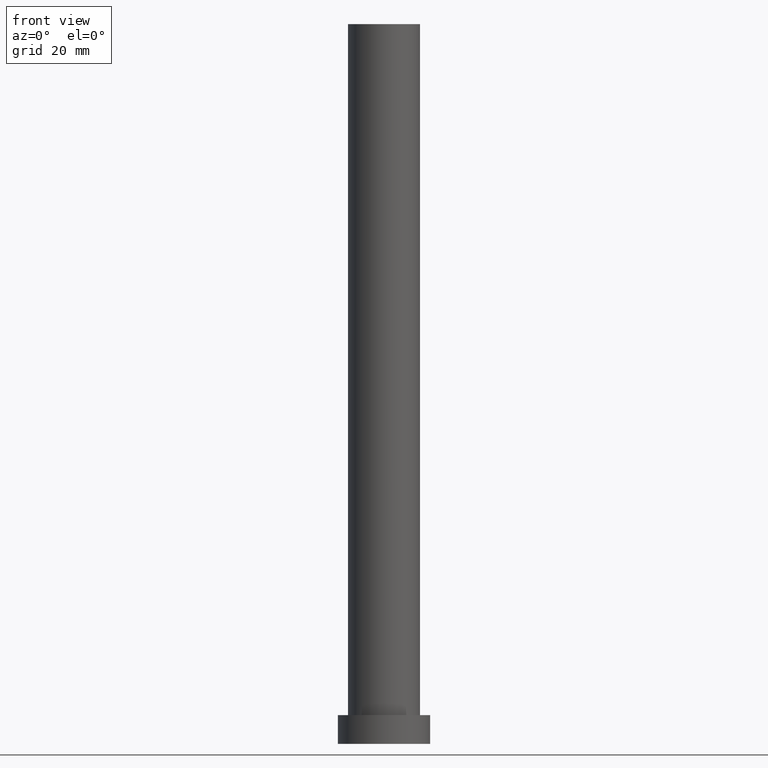
[diagram: clean part render]
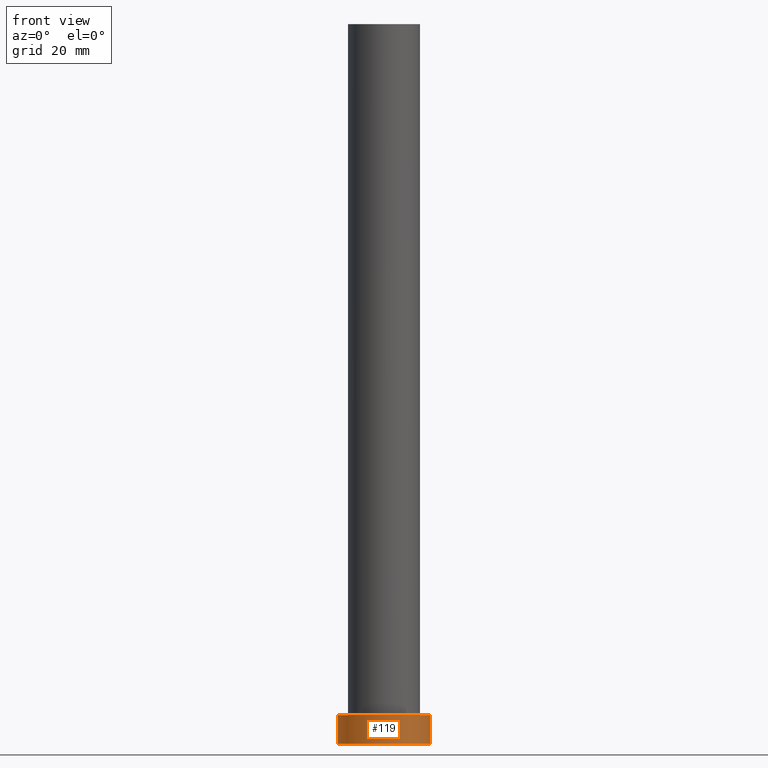
[diagram: same view with one face highlighted and labeled with its STEP entity id]
A machine part, front view. The second image highlights one B-rep face of the part: STEP entity #119.
In plain terms, the highlighted cylindrical surface (partial cylindrical patch) has radius 16 mm, axis along (-0, -0, -1).
Its self-contained STEP definition (entity closure, byte-faithful):
#1 = ORIENTED_EDGE ( 'NONE', *, *, #93, .F. ) ;
#9 = DIRECTION ( 'NONE',  ( 0.000000000000000000, 0.000000000000000000, 1.000000000000000000 ) ) ;
#15 = AXIS2_PLACEMENT_3D ( 'NONE', #49, #123, #56 ) ;
#19 = ORIENTED_EDGE ( 'NONE', *, *, #214, .T. ) ;
#20 = AXIS2_PLACEMENT_3D ( 'NONE', #86, #9, #124 ) ;
#22 = EDGE_LOOP ( 'NONE', ( #1, #80, #177, #19 ) ) ;
#23 = EDGE_CURVE ( 'NONE', #156, #232, #37, .T. ) ;
#28 = DIRECTION ( 'NONE',  ( -1.000000000000000000, 0.000000000000000000, 0.000000000000000000 ) ) ;
#32 = CARTESIAN_POINT ( 'NONE',  ( 16.00000000000000000, 1.959434878635765131E-15, 10.00000000000000000 ) ) ;
#37 = CIRCLE ( 'NONE', #15, 16.00000000000000000 ) ;
#39 = VERTEX_POINT ( 'NONE', #146 ) ;
#43 = VECTOR ( 'NONE', #210, 1000.000000000000000 ) ;
#49 = CARTESIAN_POINT ( 'NONE',  ( 0.000000000000000000, 0.000000000000000000, 10.00000000000000000 ) ) ;
#53 = FACE_OUTER_BOUND ( 'NONE', #22, .T. ) ;
#54 = CARTESIAN_POINT ( 'NONE',  ( 16.00000000000000000, 1.959434878635765131E-15, 10.00000000000000000 ) ) ;
#55 = CARTESIAN_POINT ( 'NONE',  ( -16.00000000000000000, 0.000000000000000000, 10.00000000000000000 ) ) ;
#56 = DIRECTION ( 'NONE',  ( 1.000000000000000000, 0.000000000000000000, 0.000000000000000000 ) ) ;
#66 = CIRCLE ( 'NONE', #20, 16.00000000000000000 ) ;
#68 = CYLINDRICAL_SURFACE ( 'NONE', #111, 16.00000000000000000 ) ;
#74 = CARTESIAN_POINT ( 'NONE',  ( -16.00000000000000000, 0.000000000000000000, 10.00000000000000000 ) ) ;
#77 = VERTEX_POINT ( 'NONE', #204 ) ;
#79 = VECTOR ( 'NONE', #147, 1000.000000000000000 ) ;
#80 = ORIENTED_EDGE ( 'NONE', *, *, #23, .F. ) ;
#86 = CARTESIAN_POINT ( 'NONE',  ( 0.000000000000000000, 0.000000000000000000, 0.000000000000000000 ) ) ;
#93 = EDGE_CURVE ( 'NONE', #232, #39, #108, .T. ) ;
#104 = DIRECTION ( 'NONE',  ( -0.000000000000000000, -0.000000000000000000, -1.000000000000000000 ) ) ;
#108 = LINE ( 'NONE', #32, #79 ) ;
#111 = AXIS2_PLACEMENT_3D ( 'NONE', #206, #104, #28 ) ;
#119 = ADVANCED_FACE ( 'NONE', ( #53 ), #68, .T. ) ;
#123 = DIRECTION ( 'NONE',  ( 0.000000000000000000, 0.000000000000000000, 1.000000000000000000 ) ) ;
#124 = DIRECTION ( 'NONE',  ( 1.000000000000000000, 0.000000000000000000, 0.000000000000000000 ) ) ;
#135 = EDGE_CURVE ( 'NONE', #156, #77, #246, .T. ) ;
#146 = CARTESIAN_POINT ( 'NONE',  ( 16.00000000000000000, 1.959434878635765131E-15, 0.000000000000000000 ) ) ;
#147 = DIRECTION ( 'NONE',  ( -0.000000000000000000, -0.000000000000000000, -1.000000000000000000 ) ) ;
#156 = VERTEX_POINT ( 'NONE', #74 ) ;
#177 = ORIENTED_EDGE ( 'NONE', *, *, #135, .T. ) ;
#204 = CARTESIAN_POINT ( 'NONE',  ( -16.00000000000000000, 0.000000000000000000, 0.000000000000000000 ) ) ;
#206 = CARTESIAN_POINT ( 'NONE',  ( 0.000000000000000000, 0.000000000000000000, 10.00000000000000000 ) ) ;
#210 = DIRECTION ( 'NONE',  ( -0.000000000000000000, -0.000000000000000000, -1.000000000000000000 ) ) ;
#214 = EDGE_CURVE ( 'NONE', #77, #39, #66, .T. ) ;
#232 = VERTEX_POINT ( 'NONE', #54 ) ;
#246 = LINE ( 'NONE', #55, #43 ) ;